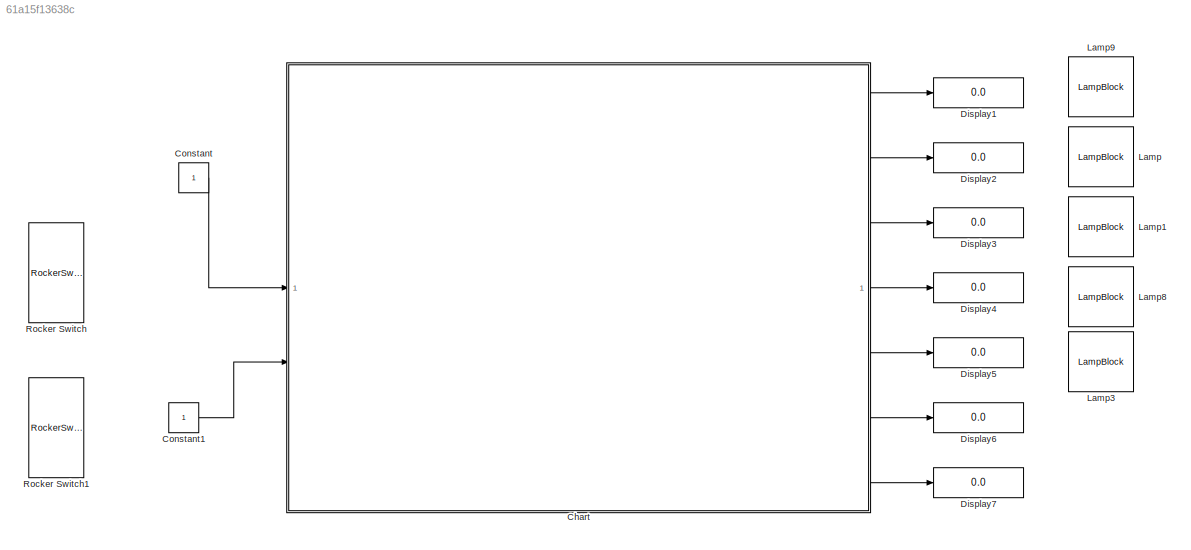
MODEL slx_61a15f13638c
KIND model
CONFIG AbsTol = auto
CONFIG EnableMultiTasking = off
CONFIG FixedStep = auto
CONFIG MaxStep = auto
CONFIG MinStep = auto
CONFIG RelTol = 1e-3
CONFIG SampleTimeConstraint = Unconstrained
CONFIG SolverName = VariableStepAuto
CONFIG StartTime = 0.0
CONFIG StopTime = inf
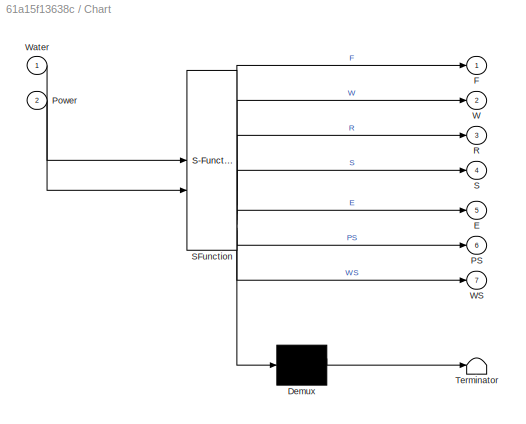
BLOCK [SubSystem] Chart
  ErrorFcn = Stateflow.Translate.translate
  PermitHierarchicalResolution = ExplicitOnly
  SFBlockType = Chart
  TreatAsAtomicUnit = on
BLOCK [Demux] Chart/ Demux 
  Outputs = 1
BLOCK [S-Function] Chart/ SFunction 
  EnableBusSupport = on
  FunctionName = sf_sfun
  PortCounts = [2 8]
  SFcnIsStateOwnerBlock = off
  SFunctionDeploymentMode = off
  Tag = Stateflow S-Function 3
BLOCK [Terminator] Chart/ Terminator 
BLOCK [Outport] Chart/E
  Port = 5
BLOCK [Outport] Chart/F
BLOCK [Outport] Chart/PS
  Port = 6
BLOCK [Inport] Chart/Power
  Port = 2
BLOCK [Outport] Chart/R
  Port = 3
BLOCK [Outport] Chart/S
  Port = 4
BLOCK [Outport] Chart/W
  Port = 2
BLOCK [Outport] Chart/WS
  Port = 7
BLOCK [Inport] Chart/Water
BLOCK [Constant] Constant
BLOCK [Constant] Constant1
BLOCK [Display] Display1
  Decimation = 1
BLOCK [Display] Display2
  Decimation = 1
BLOCK [Display] Display3
  Decimation = 1
BLOCK [Display] Display4
  Decimation = 1
BLOCK [Display] Display5
  Decimation = 1
BLOCK [Display] Display6
  Decimation = 1
BLOCK [Display] Display7
  Decimation = 1
BLOCK [LampBlock] Lamp
  LabelPosition = Hide
BLOCK [LampBlock] Lamp1
  LabelPosition = Hide
BLOCK [LampBlock] Lamp3
  LabelPosition = Hide
BLOCK [LampBlock] Lamp8
  LabelPosition = Hide
BLOCK [LampBlock] Lamp9
  LabelPosition = Hide
BLOCK [RockerSwitchBlock] Rocker Switch
BLOCK [RockerSwitchBlock] Rocker Switch1
LINE Chart:1 -> Display1:1
LINE Chart:2 -> Display2:1
LINE Chart:3 -> Display3:1
LINE Chart:4 -> Display4:1
LINE Chart:5 -> Display5:1
LINE Chart:6 -> Display6:1
LINE Chart:7 -> Display7:1
LINE Constant1:1 -> Chart:2
LINE Constant:1 -> Chart:1
CHART Chart states=9 transitions=9
  STATE_LABEL 'Power_Supply'
  STATE_LABEL 'Water_Supply'
  STATE_LABEL 'Fill\nentry:F=1;'
  STATE_LABEL 'Washing\nentry:F=0,W=1;'
  STATE_LABEL 'Rinse\nentry:W=0,R=1;'
  STATE_LABEL 'Spin\nentry:R=0,S=1;'
  STATE_LABEL 'End\nentry:S=0,E=1'
  STATE_LABEL 'Power_indicator\nentry:PS=1;'
  STATE_LABEL 'Water_Indicator\nentry:WS=1;'
CHART  states=0 transitions=0
